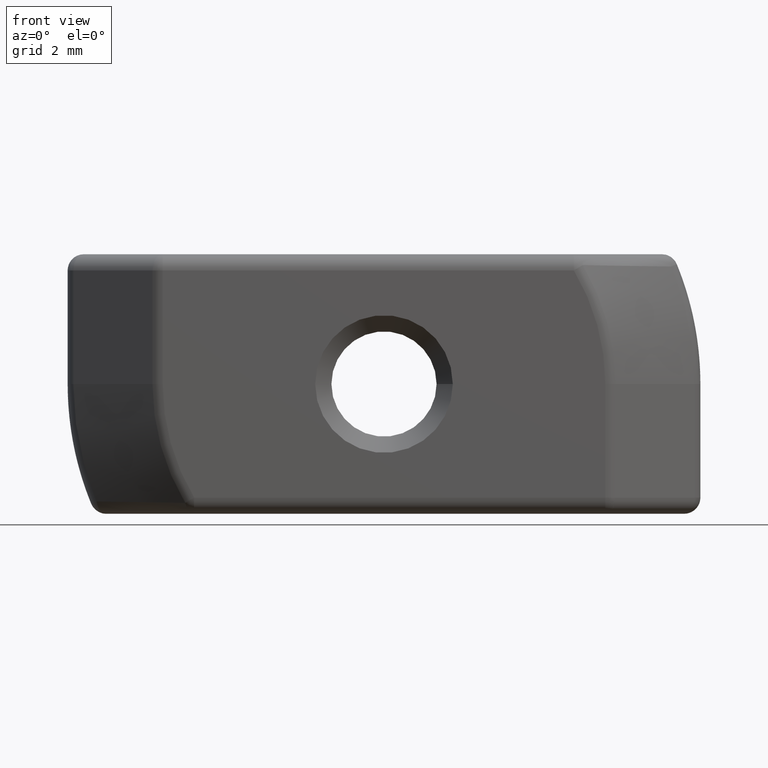
[diagram: clean part render]
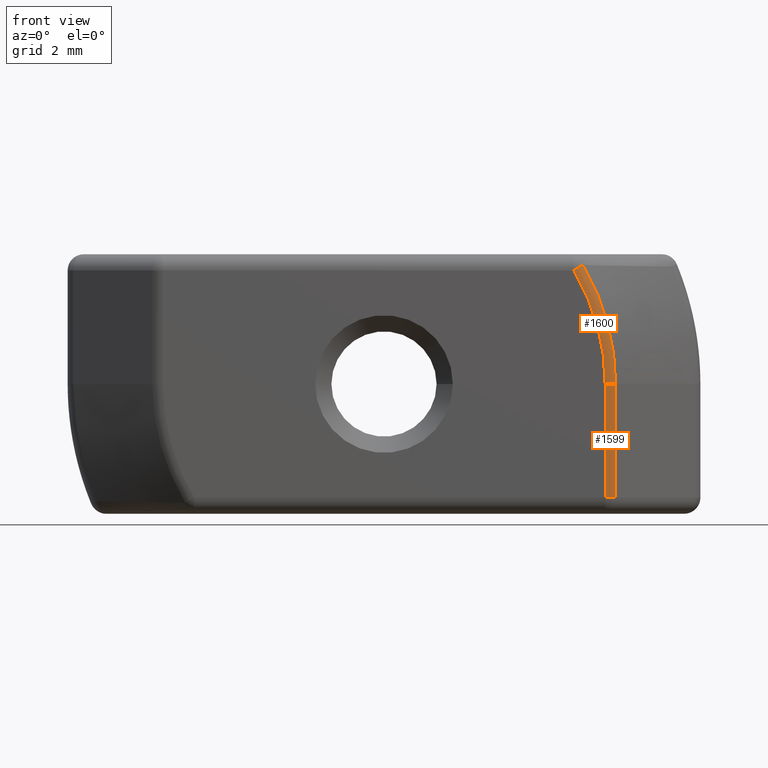
[diagram: same view with one multi-face feature highlighted, each face labeled with its STEP entity id]
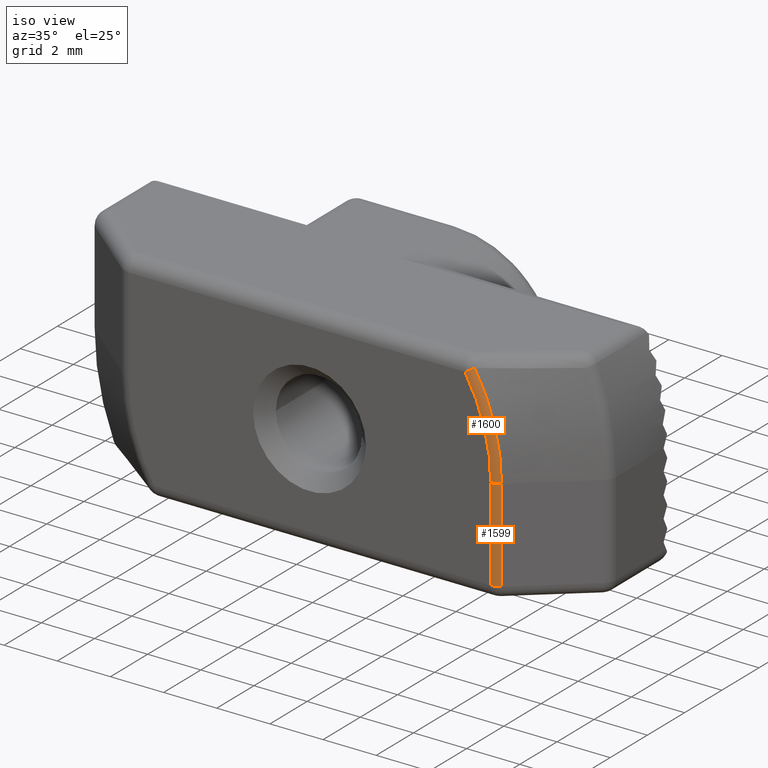
[diagram: same view with one multi-face feature highlighted, each face labeled with its STEP entity id]
A machine part, front view. The highlighted faces form ONE feature: a constant-radius fillet chain: 2 tangent blend faces with common blend radius 0.5 mm. The faces share edges in the B-rep.
A second angle (iso view) of the same feature is appended — it is thin or edge-on in the first view.
Their STEP definitions:
[1] entity #1599 (Cylinder):
#93=LINE('',#2441,#223);
#135=LINE('',#2671,#265);
#223=VECTOR('',#1901,3.5);
#265=VECTOR('',#2105,3.5);
#413=CYLINDRICAL_SURFACE('',#1759,0.5);
#462=FACE_OUTER_BOUND('',#566,.T.);
#566=EDGE_LOOP('',(#1233,#1234,#1235,#1236));
#674=CIRCLE('',#1757,0.5);
#676=CIRCLE('',#1760,0.5);
#700=VERTEX_POINT('',#2439);
#701=VERTEX_POINT('',#2440);
#769=VERTEX_POINT('',#2664);
#770=VERTEX_POINT('',#2669);
#848=EDGE_CURVE('',#700,#701,#93,.T.);
#946=EDGE_CURVE('',#701,#769,#674,.F.);
#948=EDGE_CURVE('',#770,#700,#676,.T.);
#949=EDGE_CURVE('',#769,#770,#135,.T.);
#1233=ORIENTED_EDGE('',*,*,#948,.T.);
#1234=ORIENTED_EDGE('',*,*,#848,.T.);
#1235=ORIENTED_EDGE('',*,*,#946,.T.);
#1236=ORIENTED_EDGE('',*,*,#949,.T.);
#1599=ADVANCED_FACE('',(#462),#413,.T.);
#1757=AXIS2_PLACEMENT_3D('',#2666,#2097,#2098);
#1759=AXIS2_PLACEMENT_3D('',#2668,#2101,#2102);
#1760=AXIS2_PLACEMENT_3D('',#2670,#2103,#2104);
#1901=DIRECTION('',(0.,0.,-1.));
#2097=DIRECTION('center_axis',(0.,0.,-1.));
#2098=DIRECTION('ref_axis',(0.,-1.,0.));
#2101=DIRECTION('center_axis',(0.,0.,1.));
#2102=DIRECTION('ref_axis',(0.341264655251311,-0.939967252129671,0.));
#2103=DIRECTION('center_axis',(0.,0.,-1.));
#2104=DIRECTION('ref_axis',(0.641555200491106,-0.76707687015241,0.));
#2105=DIRECTION('',(0.,0.,1.));
#2439=CARTESIAN_POINT('',(6.8184699230329,-5.3,0.));
#2440=CARTESIAN_POINT('',(6.8184699230329,-5.3,-3.5));
#2441=CARTESIAN_POINT('',(6.8184699230329,-5.3,0.));
#2664=CARTESIAN_POINT('',(7.13924752327845,-5.18353843507621,-3.5));
#2666=CARTESIAN_POINT('Origin',(6.8184699230329,-4.8,-3.5));
#2668=CARTESIAN_POINT('Origin',(6.8184699230329,-4.8,0.));
#2669=CARTESIAN_POINT('',(7.13924752327845,-5.18353843507621,0.));
#2670=CARTESIAN_POINT('Origin',(6.8184699230329,-4.8,0.));
#2671=CARTESIAN_POINT('',(7.13924752327845,-5.18353843507621,0.));
[2] entity #1600 (Torus):
#20=TOROIDAL_SURFACE('',#1761,6.8184699230329,0.5);
#463=FACE_OUTER_BOUND('',#567,.T.);
#567=EDGE_LOOP('',(#1237,#1238,#1239,#1240));
#640=CIRCLE('',#1680,6.8184699230329);
#671=CIRCLE('',#1751,0.499999999999997);
#676=CIRCLE('',#1760,0.5);
#677=CIRCLE('',#1762,7.13924752327845);
#700=VERTEX_POINT('',#2439);
#702=VERTEX_POINT('',#2442);
#767=VERTEX_POINT('',#2656);
#770=VERTEX_POINT('',#2669);
#849=EDGE_CURVE('',#702,#700,#640,.T.);
#941=EDGE_CURVE('',#767,#702,#671,.F.);
#948=EDGE_CURVE('',#770,#700,#676,.T.);
#950=EDGE_CURVE('',#770,#767,#677,.T.);
#1237=ORIENTED_EDGE('',*,*,#941,.T.);
#1238=ORIENTED_EDGE('',*,*,#849,.T.);
#1239=ORIENTED_EDGE('',*,*,#948,.F.);
#1240=ORIENTED_EDGE('',*,*,#950,.T.);
#1600=ADVANCED_FACE('',(#463),#20,.T.);
#1680=AXIS2_PLACEMENT_3D('',#2443,#1902,#1903);
#1751=AXIS2_PLACEMENT_3D('',#2657,#2084,#2085);
#1760=AXIS2_PLACEMENT_3D('',#2670,#2103,#2104);
#1761=AXIS2_PLACEMENT_3D('',#2672,#2106,#2107);
#1762=AXIS2_PLACEMENT_3D('',#2673,#2108,#2109);
#1902=DIRECTION('center_axis',(0.,1.,0.));
#1903=DIRECTION('ref_axis',(0.954110005881997,0.,0.29945633517402));
#2084=DIRECTION('center_axis',(-0.513311643154667,9.86087510804789E-13,
0.858202282100121));
#2085=DIRECTION('ref_axis',(0.550584137154278,-0.767076870152411,0.32931775413916));
#2103=DIRECTION('center_axis',(0.,0.,-1.));
#2104=DIRECTION('ref_axis',(0.641555200491106,-0.76707687015241,0.));
#2106=DIRECTION('center_axis',(0.,-1.,0.));
#2107=DIRECTION('ref_axis',(0.,0.,-1.));
#2108=DIRECTION('center_axis',(4.6568397733238E-17,-1.,-1.48373465565038E-16));
#2109=DIRECTION('ref_axis',(0.954110005881997,0.,0.29945633517402));
#2439=CARTESIAN_POINT('',(6.8184699230329,-5.3,0.));
#2442=CARTESIAN_POINT('',(5.8516264483735,-5.3,3.5));
#2443=CARTESIAN_POINT('Origin',(0.,-5.3,0.));
#2656=CARTESIAN_POINT('',(6.12691851695137,-5.18353843507568,3.66465887706959));
#2657=CARTESIAN_POINT('Origin',(5.85162644837376,-4.8,3.49999999999958));
#2669=CARTESIAN_POINT('',(7.13924752327845,-5.18353843507621,0.));
#2670=CARTESIAN_POINT('Origin',(6.8184699230329,-4.8,0.));
#2672=CARTESIAN_POINT('Origin',(0.,-4.8,0.));
#2673=CARTESIAN_POINT('Origin',(5.55111512312578E-16,-5.1835384350762,-8.32667268468867E-16));